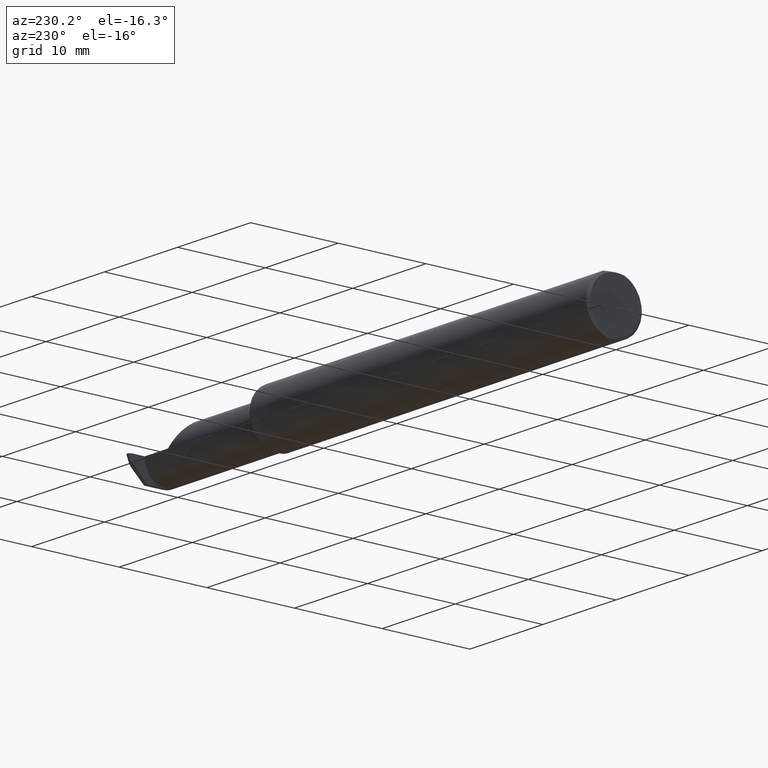
[diagram: clean part render]
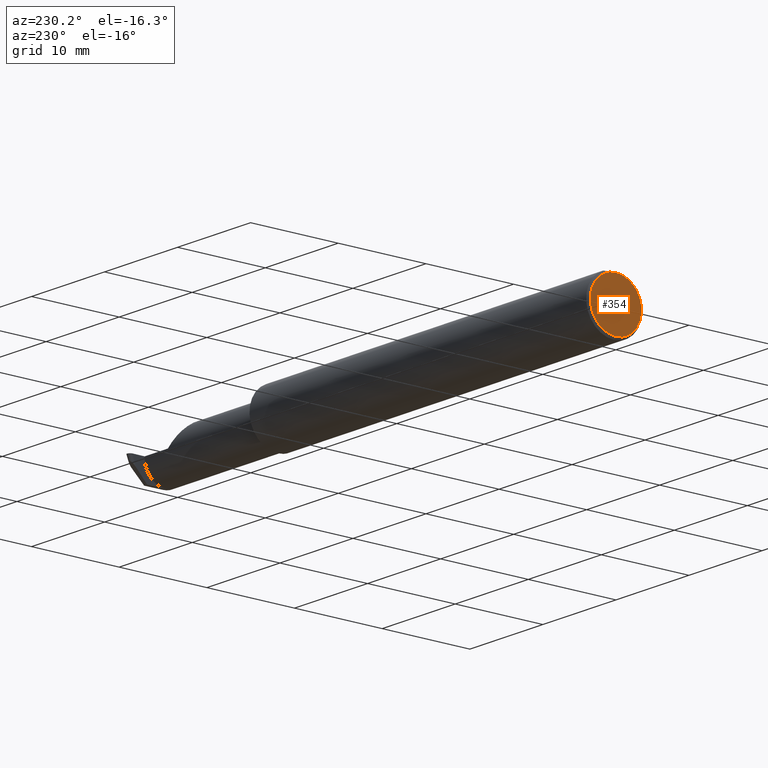
[diagram: same view with one face highlighted and labeled with its STEP entity id]
A machine part, auxiliary view. The second image highlights one B-rep face of the part: STEP entity #354.
In plain terms, the highlighted planar face has unit normal (1, 0, 0).
Its self-contained STEP definition (entity closure, byte-faithful):
#5 = DIRECTION ( 'NONE',  ( 0.000000000000000000, 0.000000000000000000, -1.000000000000000000 ) ) ;
#70 = PLANE ( 'NONE',  #491 ) ;
#81 = FACE_OUTER_BOUND ( 'NONE', #776, .T. ) ;
#85 = CARTESIAN_POINT ( 'NONE',  ( 0.000000000000000000, 0.000000000000000000, 0.000000000000000000 ) ) ;
#129 = VERTEX_POINT ( 'NONE', #291 ) ;
#196 = DIRECTION ( 'NONE',  ( 0.000000000000000000, 0.000000000000000000, -1.000000000000000000 ) ) ;
#208 = DIRECTION ( 'NONE',  ( 1.000000000000000000, 0.000000000000000000, 0.000000000000000000 ) ) ;
#261 = CARTESIAN_POINT ( 'NONE',  ( 0.000000000000000000, 0.000000000000000000, -0.1149999999999997274 ) ) ;
#291 = CARTESIAN_POINT ( 'NONE',  ( 0.000000000000000000, 3.414809992080329023E-17, 0.1149999999999999217 ) ) ;
#308 = AXIS2_PLACEMENT_3D ( 'NONE', #85, #778, #5 ) ;
#310 = CIRCLE ( 'NONE', #336, 0.1149999999999997274 ) ;
#314 = ORIENTED_EDGE ( 'NONE', *, *, #661, .T. ) ;
#322 = VERTEX_POINT ( 'NONE', #261 ) ;
#336 = AXIS2_PLACEMENT_3D ( 'NONE', #445, #366, #196 ) ;
#354 = ADVANCED_FACE ( 'NONE', ( #81 ), #70, .F. ) ;
#366 = DIRECTION ( 'NONE',  ( -1.000000000000000000, -0.000000000000000000, -0.000000000000000000 ) ) ;
#412 = EDGE_CURVE ( 'NONE', #129, #322, #799, .T. ) ;
#445 = CARTESIAN_POINT ( 'NONE',  ( 0.000000000000000000, 0.000000000000000000, 0.000000000000000000 ) ) ;
#462 = ORIENTED_EDGE ( 'NONE', *, *, #412, .T. ) ;
#464 = DIRECTION ( 'NONE',  ( 0.000000000000000000, 0.000000000000000000, -1.000000000000000000 ) ) ;
#491 = AXIS2_PLACEMENT_3D ( 'NONE', #531, #208, #464 ) ;
#531 = CARTESIAN_POINT ( 'NONE',  ( 0.000000000000000000, 0.000000000000000000, 0.000000000000000000 ) ) ;
#661 = EDGE_CURVE ( 'NONE', #322, #129, #310, .T. ) ;
#776 = EDGE_LOOP ( 'NONE', ( #462, #314 ) ) ;
#778 = DIRECTION ( 'NONE',  ( -1.000000000000000000, -0.000000000000000000, -0.000000000000000000 ) ) ;
#799 = CIRCLE ( 'NONE', #308, 0.1149999999999997274 ) ;